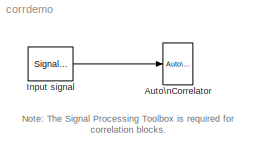
MODEL corrdemo
KIND model
BLOCK [Reference] Auto\nCorrelator  REF=simulink_extras/Additional\nSinks/Auto\nCorrelator
  HowOften = 50
  Ports = [1]
  ShowPortLabels = on
  SourceBlock = simulink_extras/Additional\nSinks/Auto\nCorrelator
  SourceType = Auto Correlator
  npts = 100
  sampleT = 0.1
BLOCK [SignalGenerator] Input signal
  Amplitude = 1.000000
  Frequency = 3.000000
  Ports = [0, 1]
  Units = rad/sec
  WaveForm = sawtooth
ANNOTATION (root): Note: The Signal Processing Toolbox is required for\ncorrelation blocks.
LINE Input signal:1 -> Auto\nCorrelator:1
